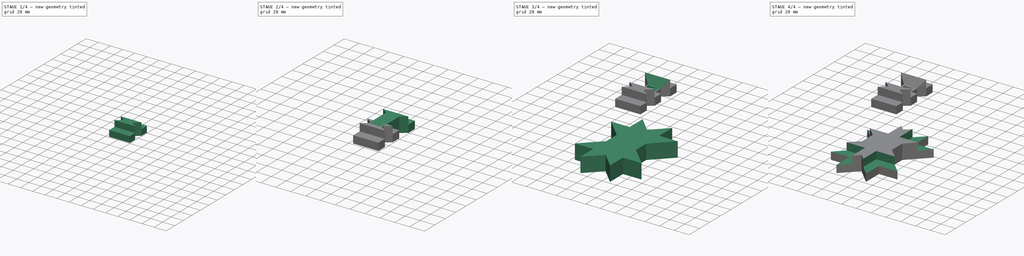
[diagram: build sequence overview — one tinted view per stage of 4, left to right]
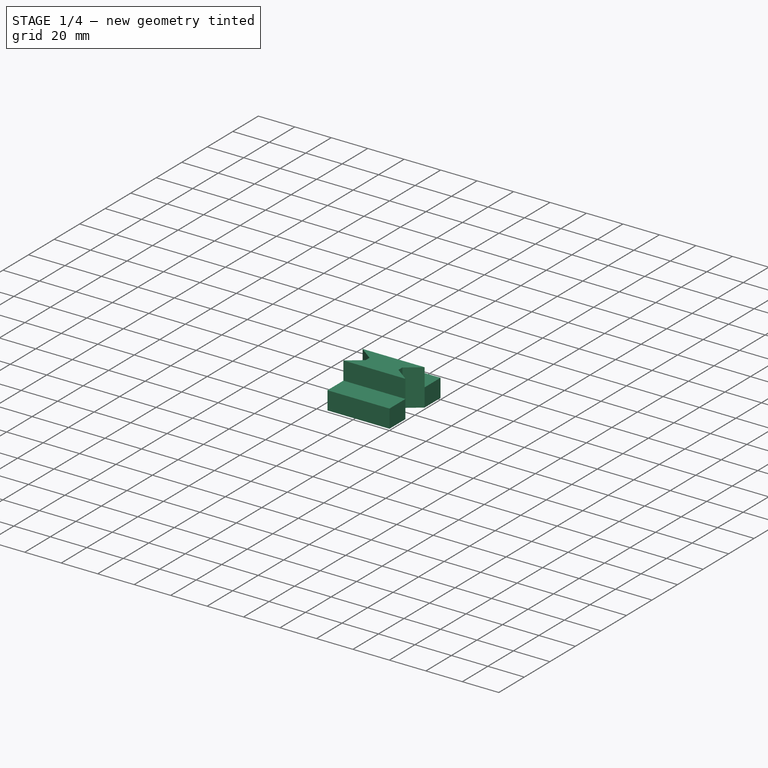
[diagram: stage 1 of 4 — iso view after this stage's code; geometry added in this stage tinted green]
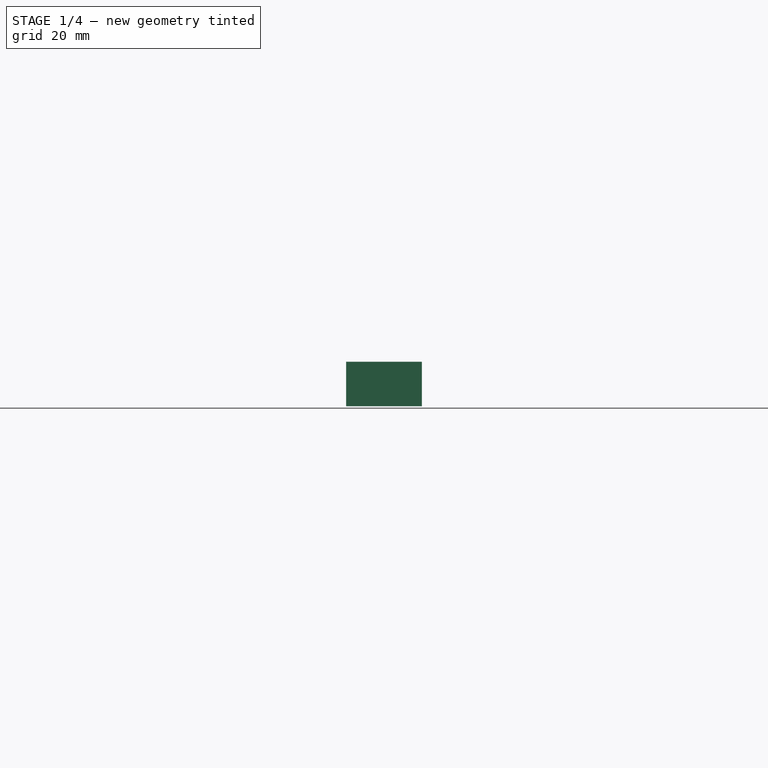
[diagram: stage 1 of 4 — front view after this stage's code; geometry added in this stage tinted green]
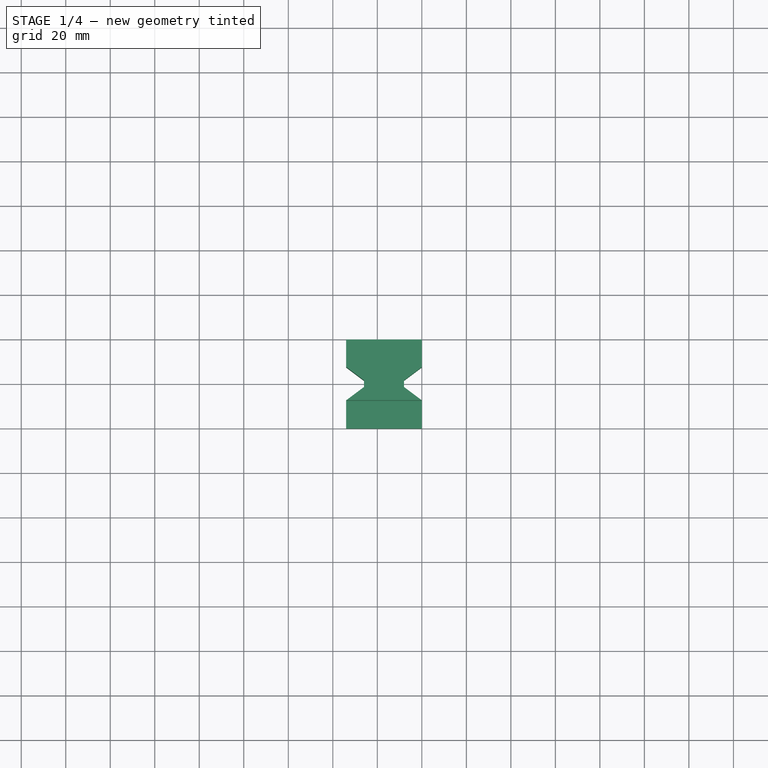
[diagram: stage 1 of 4 — top view after this stage's code; geometry added in this stage tinted green]
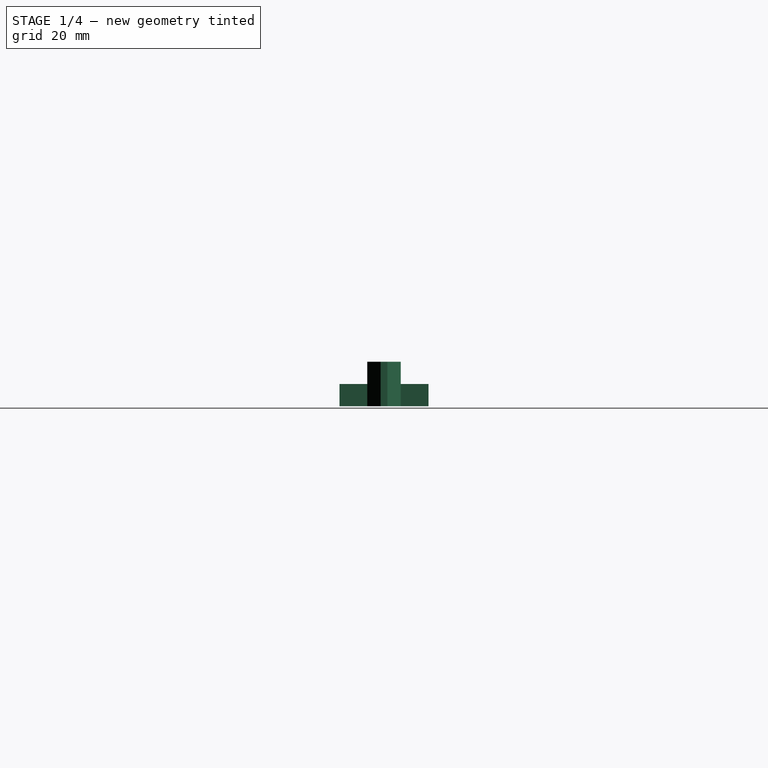
[diagram: stage 1 of 4 — right view after this stage's code; geometry added in this stage tinted green]
FCSTD DOCUMENT  (FreeCAD 0.20R29410 (Git))
Label: OtherBodyParts_Featherweight-fixed
License: All rights reserved
LicenseURL: http://en.wikipedia.org/wiki/All_rights_reserved
objects: Sketcher::SketchObject×10, PartDesign::Pocket×7, PartDesign::Pad×3, PartDesign::Body×3
note: 33 computed .brp shape members not serialized (recipe doc carries the construction recipe); baked Part::Feature solids carry a one-line shape summary decoded from their .brp

FEATURE [Sketcher::SketchObject] Sketch001
  FullyConstrained = true
  MapMode = 5
  Support = -> [XY_Plane001]
  sketch-geometry (12):
    g0: LineSegment StartX=-34 StartY=40 StartZ=0 EndX=1.39942e-05 EndY=40 EndZ=0
    g1: LineSegment StartX=1.39942e-05 StartY=40 StartZ=0 EndX=1.39942e-05 EndY=27.5 EndZ=0
    g2: LineSegment StartX=0 StartY=0 StartZ=0 EndX=-34 EndY=0 EndZ=0
    g3: LineSegment StartX=-34 StartY=0 StartZ=0 EndX=-34 EndY=12.5 EndZ=0
    g4: LineSegment StartX=-34 StartY=27.5 StartZ=0 EndX=-26 EndY=21.5 EndZ=0
    g5: LineSegment StartX=-26 StartY=21.5 StartZ=0 EndX=-26 EndY=18.5 EndZ=0
    g6: LineSegment StartX=-26 StartY=18.5 StartZ=0 EndX=-34 EndY=12.5 EndZ=0
    g7: LineSegment StartX=4.18297e-05 StartY=12.5 StartZ=0 EndX=-7.99998 EndY=18.5 EndZ=0
    g8: LineSegment StartX=-7.99998 StartY=18.5 StartZ=0 EndX=-7.99998 EndY=21.5 EndZ=0
    g9: LineSegment StartX=-7.99998 StartY=21.5 StartZ=0 EndX=1.39942e-05 EndY=27.5 EndZ=0
    g10: LineSegment StartX=-34 StartY=27.5 StartZ=0 EndX=-34 EndY=40 EndZ=0
    g11: LineSegment StartX=4.18297e-05 StartY=12.5 StartZ=0 EndX=0 EndY=0 EndZ=0
  constraints (35):
    c: Coincident(g0,g1)
    c: Coincident(g11,g2)
    c: Coincident(g10,g0)
    c: Horizontal(g0)
    c: Horizontal(g2)
    c: Vertical(g1)
    c: Vertical(g3)
    c: Coincident(g4,g5)
    c: Vertical(g5)
    c: Coincident(g5,g6)
    c: Coincident(g7,g8)
    c: Vertical(g8)
    c: Coincident(g8,g9)
    c: Coincident(g3,g6)
    c: Coincident(g10,g4)
    c: Coincident(g1,g9)
    c: Coincident(g11,g7)
    c: Equal(g11,g3)
    c: Equal(g3,g10)
    c: Equal(g10,g1)
    c: Equal(g8,g5)
    c: Equal(g6,g7)
    c: Equal(g7,g9)
    c: Equal(g9,g4)
    c: Equal(g0,g2)
    c: DistanceX(g4,g8) = 18
    c: DistanceY(g4,g8) = 0
    c: DistanceY(g1,g4) = 0
    c: Coincident(g3,g2)
    c: DistanceX(g0,g0) = 34
    c: Distance(g7,g7) = 10
    c: DistanceY(g7,g3) = 0
    c: Coincident(g2,g-1)
    c: DistanceY(g10,g10) = 12.5
    c: DistanceY(g3,g4) = 15
FEATURE [PartDesign::Pad] Pad001
  Direction = (0,0,1)
  Length = 20
  Length2 = 10
  Profile = -> Sketch001
  ReferenceAxis = -> Sketch001 [N_Axis]
  Type = 0
FEATURE [PartDesign::Body] Body  label="I"
  Group = -> [Sketch,Pad,Sketch003,Pocket,Sketch004,Pocket001,Sketch008,Pocket005,Sketch009,Pocket006]
  Origin = -> Origin
  Tip = -> Pocket006
FEATURE [Sketcher::SketchObject] Sketch010
  ExternalGeometry = -> [Pad001]
  FullyConstrained = true
  MapMode = 5
  Placement = pos=(0,0,20) rot=(0,0,1;0rad)
  Support = -> [Pad001]
  sketch-geometry (8):
    g0: LineSegment StartX=-34 StartY=40 StartZ=0 EndX=1.39942e-05 EndY=40 EndZ=0
    g1: LineSegment StartX=1.39942e-05 StartY=40 StartZ=0 EndX=1.39942e-05 EndY=27.5 EndZ=0
    g2: LineSegment StartX=1.39942e-05 StartY=27.5 StartZ=0 EndX=-34 EndY=27.5 EndZ=0
    g3: LineSegment StartX=-34 StartY=27.5 StartZ=0 EndX=-34 EndY=40 EndZ=0
    g4: LineSegment StartX=-34 StartY=0 StartZ=0 EndX=4.18297e-05 EndY=0 EndZ=0
    g5: LineSegment StartX=4.18297e-05 StartY=0 StartZ=0 EndX=4.18297e-05 EndY=12.5 EndZ=0
    g6: LineSegment StartX=4.18297e-05 StartY=12.5 StartZ=0 EndX=-34 EndY=12.5 EndZ=0
    g7: LineSegment StartX=-34 StartY=12.5 StartZ=0 EndX=-34 EndY=0 EndZ=0
  constraints (22):
    c: Coincident(g0,g1)
    c: Coincident(g1,g2)
    c: Coincident(g2,g3)
    c: Coincident(g3,g0)
    c: Horizontal(g0)
    c: Horizontal(g2)
    c: Vertical(g1)
    c: Vertical(g3)
    c: Coincident(g0,g-5)
    c: PointOnObject(g1,g-6)
    c: Coincident(g4,g5)
    c: Coincident(g5,g6)
    c: Coincident(g6,g7)
    c: Coincident(g7,g4)
    c: Horizontal(g4)
    c: Horizontal(g6)
    c: Vertical(g5)
    c: Vertical(g7)
    c: Coincident(g4,g-3)
    c: PointOnObject(g5,g-4)
    c: DistanceY(g7,g7) = 12.5
    c: DistanceY(g3,g3) = 12.5
FEATURE [PartDesign::Pocket] Pocket007
  BaseFeature = -> Pad001
  Direction = (0,0,-1)
  Length = 10
  Length2 = 5
  Profile = -> Sketch010
  ReferenceAxis = -> Sketch010 [N_Axis]
  Type = 0
FEATURE [PartDesign::Body] Body001  label="I2 (4cm)"
  Group = -> [Sketch001,Pad001,Sketch010,Pocket007]
  Origin = -> Origin001
  Placement = pos=(60.5835,0,0) rot=(0,0,1;0rad)
  Tip = -> Pocket007
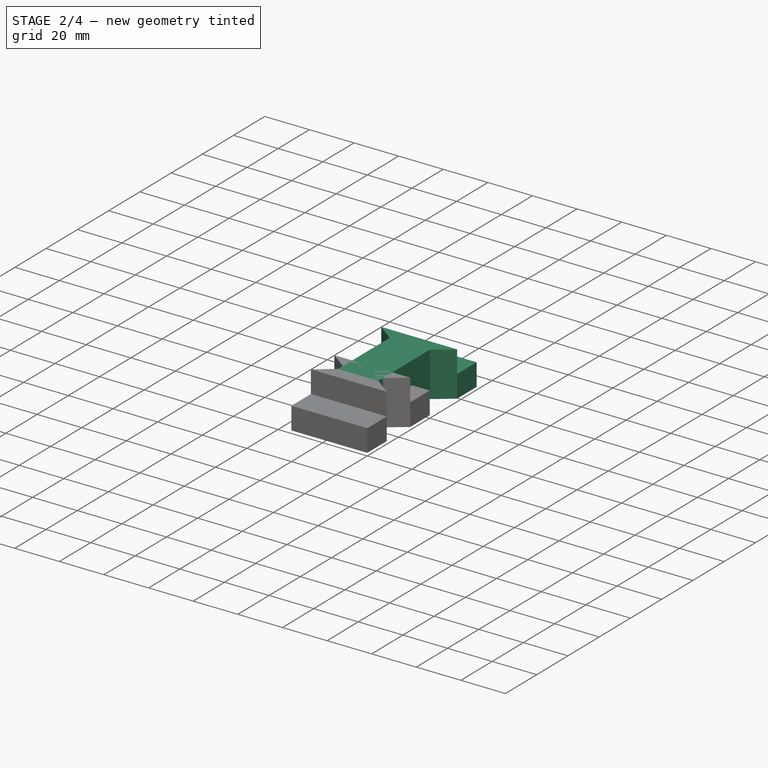
[diagram: stage 2 of 4 — iso view after this stage's code; geometry added in this stage tinted green]
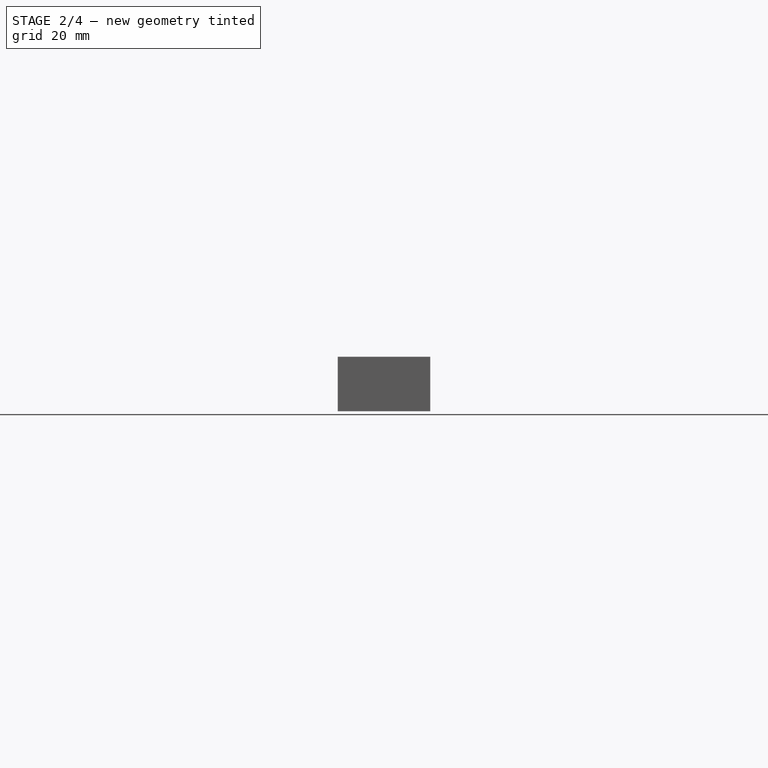
[diagram: stage 2 of 4 — front view after this stage's code; geometry added in this stage tinted green]
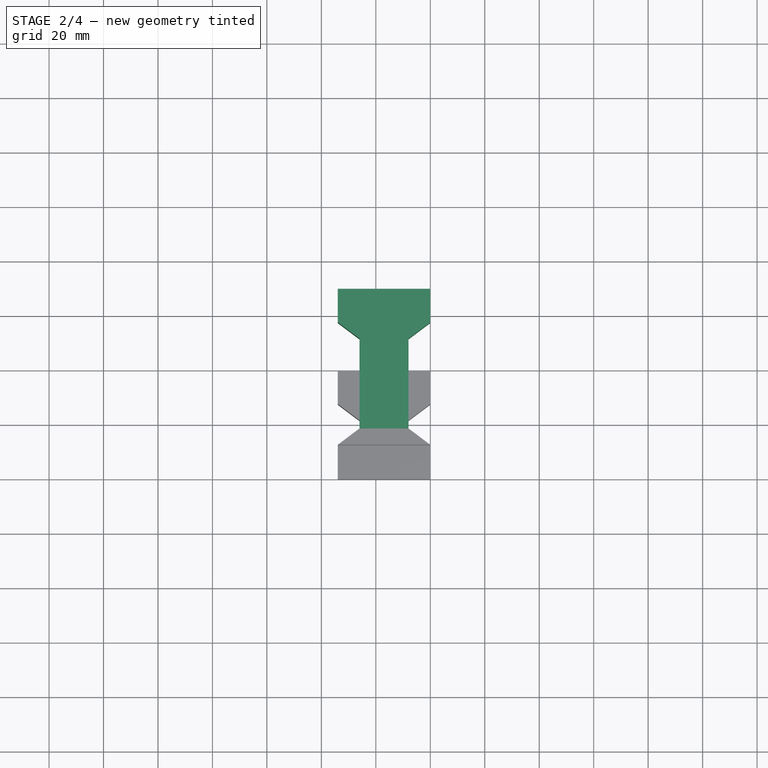
[diagram: stage 2 of 4 — top view after this stage's code; geometry added in this stage tinted green]
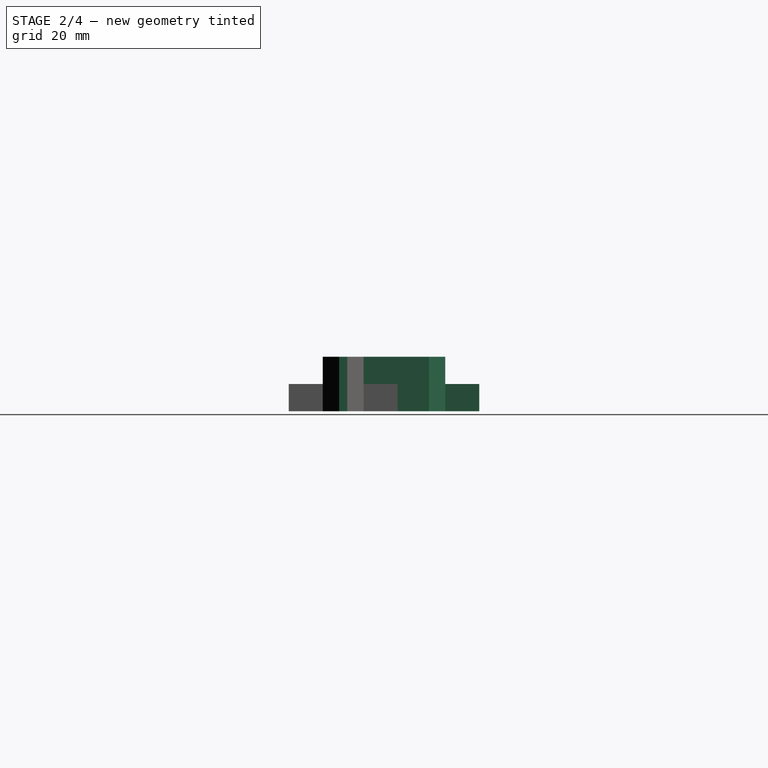
[diagram: stage 2 of 4 — right view after this stage's code; geometry added in this stage tinted green]
FEATURE [Sketcher::SketchObject] Sketch
  FullyConstrained = true
  MapMode = 5
  Support = -> [XY_Plane]
  sketch-geometry (12):
    g0: LineSegment StartX=-34 StartY=70 StartZ=0 EndX=1.39943e-05 EndY=70 EndZ=0
    g1: LineSegment StartX=1.39943e-05 StartY=70 StartZ=0 EndX=1.39943e-05 EndY=57.5 EndZ=0
    g2: LineSegment StartX=0 StartY=0 StartZ=0 EndX=-34 EndY=0 EndZ=0
    g3: LineSegment StartX=-34 StartY=0 StartZ=0 EndX=-34 EndY=12.5 EndZ=0
    g4: LineSegment StartX=-34 StartY=57.5 StartZ=0 EndX=-26 EndY=51.5 EndZ=0
    g5: LineSegment StartX=-26 StartY=51.5 StartZ=0 EndX=-26 EndY=18.5 EndZ=0
    g6: LineSegment StartX=-26 StartY=18.5 StartZ=0 EndX=-34 EndY=12.5 EndZ=0
    g7: LineSegment StartX=4.18296e-05 StartY=12.5 StartZ=0 EndX=-7.99998 EndY=18.5 EndZ=0
    g8: LineSegment StartX=-7.99998 StartY=18.5 StartZ=0 EndX=-7.99998 EndY=51.5 EndZ=0
    g9: LineSegment StartX=-7.99998 StartY=51.5 StartZ=0 EndX=1.39943e-05 EndY=57.5 EndZ=0
    g10: LineSegment StartX=-34 StartY=57.5 StartZ=0 EndX=-34 EndY=70 EndZ=0
    g11: LineSegment StartX=4.18296e-05 StartY=12.5 StartZ=0 EndX=0 EndY=0 EndZ=0
  constraints (35):
    c: Coincident(g0,g1)
    c: Coincident(g11,g2)
    c: Coincident(g10,g0)
    c: Horizontal(g0)
    c: Horizontal(g2)
    c: Vertical(g1)
    c: Vertical(g3)
    c: Coincident(g4,g5)
    c: Vertical(g5)
    c: Coincident(g5,g6)
    c: Coincident(g7,g8)
    c: Vertical(g8)
    c: Coincident(g8,g9)
    c: Coincident(g3,g6)
    c: Coincident(g10,g4)
    c: Coincident(g1,g9)
    c: Coincident(g11,g7)
    c: Equal(g11,g3)
    c: Equal(g3,g10)
    c: Equal(g10,g1)
    c: Equal(g8,g5)
    c: Equal(g6,g7)
    c: Equal(g7,g9)
    c: Equal(g9,g4)
    c: Equal(g0,g2)
    c: DistanceX(g4,g8) = 18
    c: DistanceY(g4,g8) = 0
    c: DistanceY(g1,g4) = 0
    c: Coincident(g3,g2)
    c: DistanceX(g0,g0) = 34
    c: Distance(g7,g7) = 10
    c: DistanceY(g7,g3) = 0
    c: Coincident(g2,g-1)
    c: DistanceY(g10,g10) = 12.5
    c: DistanceY(g3,g4) = 45
FEATURE [PartDesign::Pad] Pad
  Direction = (0,0,1)
  Length = 20
  Length2 = 10
  Profile = -> Sketch
  ReferenceAxis = -> Sketch [N_Axis]
  Type = 0
FEATURE [Sketcher::SketchObject] Sketch003
  ExternalGeometry = -> [Pad]
  FullyConstrained = true
  MapMode = 5
  Placement = pos=(0,0,20) rot=(0,0,1;0rad)
  Support = -> [Pad]
  sketch-geometry (4):
    g0: LineSegment StartX=-34 StartY=12.5 StartZ=0 EndX=4.18296e-05 EndY=12.5 EndZ=0
    g1: LineSegment StartX=4.18296e-05 StartY=12.5 StartZ=0 EndX=0 EndY=0 EndZ=0
    g2: LineSegment StartX=0 StartY=0 StartZ=0 EndX=-34 EndY=0 EndZ=0
    g3: LineSegment StartX=-34 StartY=0 StartZ=0 EndX=-34 EndY=12.5 EndZ=0
  constraints (8):
    c: Coincident(g-4,g0)
    c: Coincident(g0,g-5)
    c: Coincident(g0,g1)
    c: Coincident(g1,g-5)
    c: Coincident(g1,g2)
    c: Coincident(g2,g-4)
    c: Coincident(g2,g3)
    c: Coincident(g3,g0)
FEATURE [PartDesign::Pocket] Pocket
  BaseFeature = -> Pad
  Direction = (0,0,-1)
  Length = 10
  Length2 = 5
  Profile = -> Sketch003
  ReferenceAxis = -> Sketch003 [N_Axis]
  Type = 0
FEATURE [Sketcher::SketchObject] Sketch004
  ExternalGeometry = -> [Pocket]
  FullyConstrained = true
  MapMode = 5
  Placement = pos=(0,0,20) rot=(0,0,1;0rad)
  Support = -> [Pocket]
  sketch-geometry (4):
    g0: LineSegment StartX=-34 StartY=57.5 StartZ=0 EndX=1.39943e-05 EndY=57.5 EndZ=0
    g1: LineSegment StartX=1.39943e-05 StartY=57.5 StartZ=0 EndX=1.39943e-05 EndY=70 EndZ=0
    g2: LineSegment StartX=1.39943e-05 StartY=70 StartZ=0 EndX=-34 EndY=70 EndZ=0
    g3: LineSegment StartX=-34 StartY=70 StartZ=0 EndX=-34 EndY=57.5 EndZ=0
  constraints (8):
    c: Coincident(g-4,g0)
    c: Coincident(g0,g-5)
    c: Coincident(g0,g1)
    c: Coincident(g1,g-5)
    c: Coincident(g1,g2)
    c: Coincident(g2,g-4)
    c: Coincident(g2,g3)
    c: Coincident(g3,g0)
FEATURE [PartDesign::Pocket] Pocket001
  BaseFeature = -> Pocket
  Direction = (0,0,-1)
  Length = 10
  Length2 = 5
  Profile = -> Sketch004
  ReferenceAxis = -> Sketch004 [N_Axis]
  Type = 0
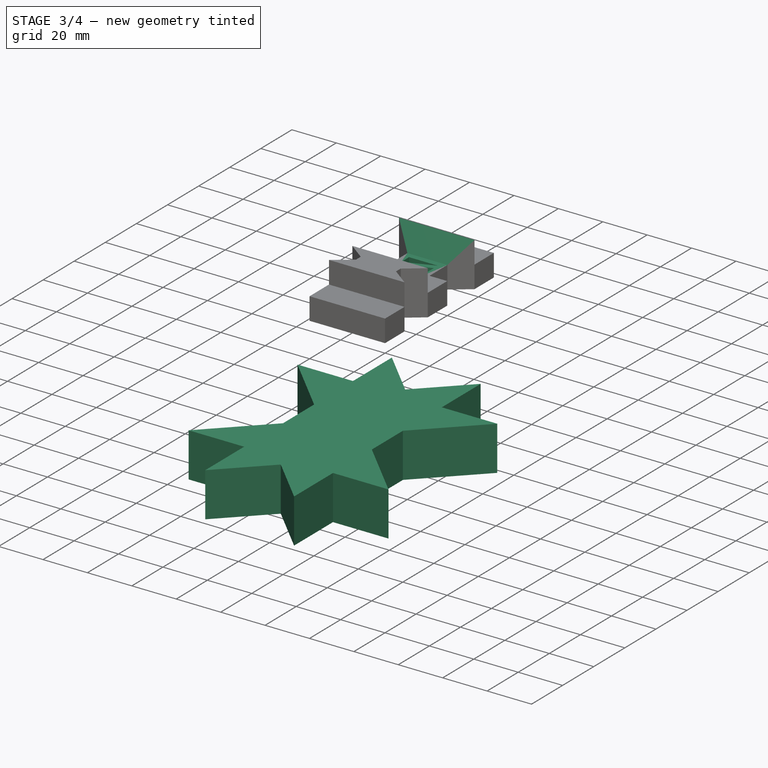
[diagram: stage 3 of 4 — iso view after this stage's code; geometry added in this stage tinted green]
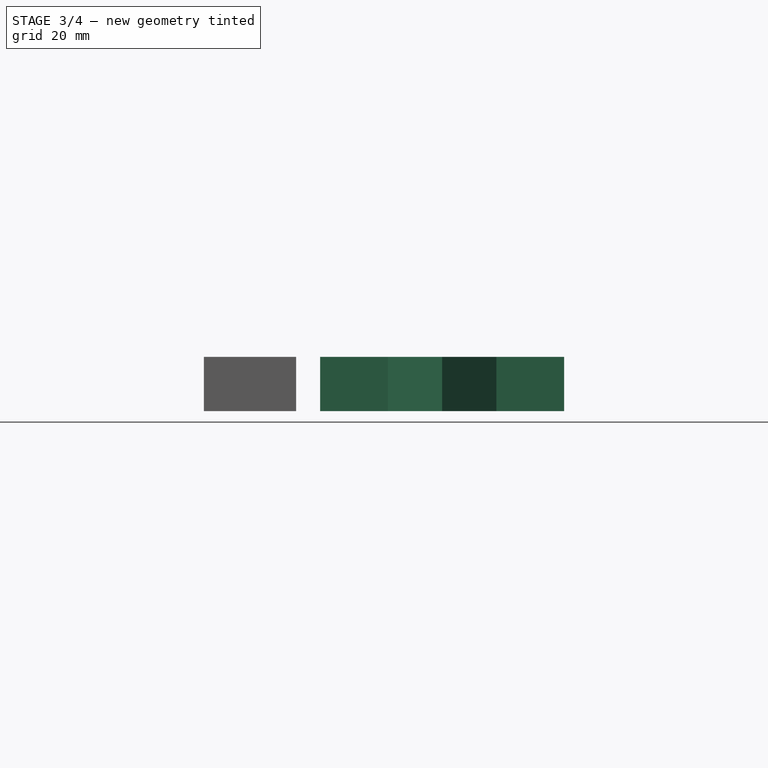
[diagram: stage 3 of 4 — front view after this stage's code; geometry added in this stage tinted green]
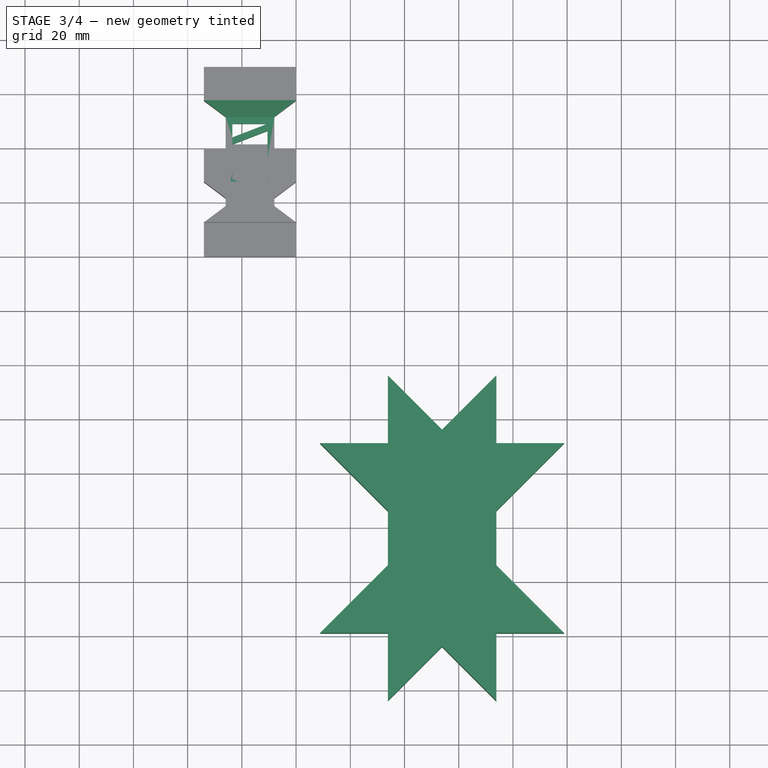
[diagram: stage 3 of 4 — top view after this stage's code; geometry added in this stage tinted green]
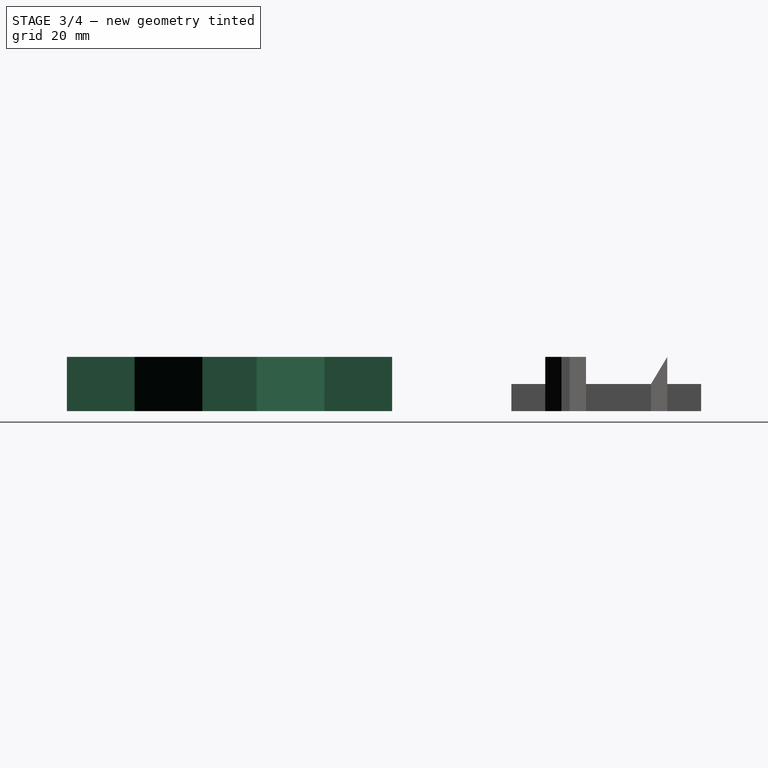
[diagram: stage 3 of 4 — right view after this stage's code; geometry added in this stage tinted green]
FEATURE [Sketcher::SketchObject] Sketch002
  FullyConstrained = true
  MapMode = 5
  Support = -> [XY_Plane002]
  sketch-geometry (22):
    g0: LineSegment StartX=33.87 StartY=-44 StartZ=0 EndX=53.87 EndY=-64 EndZ=0
    g1: LineSegment StartX=8.87 StartY=-69 StartZ=0 EndX=43.87 EndY=-104 EndZ=0
    g2: LineSegment StartX=8.87 StartY=-139 StartZ=0 EndX=43.87 EndY=-104 EndZ=0
    g3: LineSegment StartX=98.87 StartY=-69 StartZ=0 EndX=63.87 EndY=-104 EndZ=0
    g4: LineSegment StartX=8.87 StartY=-139 StartZ=0 EndX=33.87 EndY=-139 EndZ=0
    g5: LineSegment StartX=33.87 StartY=-139 StartZ=0 EndX=33.87 EndY=-164 EndZ=0
    g6: LineSegment StartX=73.87 StartY=-164 StartZ=0 EndX=73.87 EndY=-139 EndZ=0
    g7: LineSegment StartX=73.87 StartY=-139 StartZ=0 EndX=98.87 EndY=-139 EndZ=0
    g8: LineSegment StartX=73.87 StartY=-44 StartZ=0 EndX=73.87 EndY=-69 EndZ=0
    g9: LineSegment StartX=73.87 StartY=-69 StartZ=0 EndX=98.87 EndY=-69 EndZ=0
    g10: LineSegment StartX=8.87 StartY=-69 StartZ=0 EndX=33.87 EndY=-69 EndZ=0
    g11: LineSegment StartX=33.87 StartY=-69 StartZ=0 EndX=33.87 EndY=-44 EndZ=0
    g12: LineSegment StartX=53.87 StartY=-144 StartZ=0 EndX=73.87 EndY=-164 EndZ=0
    g13: LineSegment StartX=53.87 StartY=-144 StartZ=0 EndX=33.87 EndY=-164 EndZ=0
    g14: LineSegment StartX=63.87 StartY=-104 StartZ=0 EndX=98.87 EndY=-139 EndZ=0
    g15: LineSegment StartX=53.87 StartY=-64 StartZ=0 EndX=73.87 EndY=-44 EndZ=0
    g16: LineSegment StartX=8.87 StartY=-69 StartZ=0 EndX=33.87 EndY=-94 EndZ=0
    g17: LineSegment StartX=33.87 StartY=-94 StartZ=0 EndX=33.87 EndY=-114 EndZ=0
    g18: LineSegment StartX=33.87 StartY=-114 StartZ=0 EndX=8.87 EndY=-139 EndZ=0
    g19: LineSegment StartX=98.87 StartY=-139 StartZ=0 EndX=73.87 EndY=-114 EndZ=0
    g20: LineSegment StartX=73.87 StartY=-114 StartZ=0 EndX=73.87 EndY=-94 EndZ=0
    g21: LineSegment StartX=73.87 StartY=-94 StartZ=0 EndX=98.87 EndY=-69 EndZ=0
  constraints (64):
    c: Coincident(g2,g4)
    c: Horizontal(g4)
    c: Coincident(g4,g5)
    c: Coincident(g5,g13)
    c: Coincident(g12,g6)
    c: Vertical(g6)
    c: Coincident(g6,g7)
    c: Coincident(g7,g14)
    c: Coincident(g15,g8)
    c: Vertical(g8)
    c: Coincident(g8,g9)
    c: Coincident(g9,g3)
    c: Coincident(g1,g10)
    c: Coincident(g10,g11)
    c: Coincident(g11,g0)
    c: Coincident(g13,g12)
    c: Coincident(g14,g3)
    c: Coincident(g2,g1)
    c: Coincident(g15,g0)
    c: DistanceY(g6,g8) = 120
    c: DistanceX(g2,g7) = 90
    c: Equal(g11,g10)
    c: Equal(g10,g8)
    c: Equal(g8,g9)
    c: Equal(g9,g7)
    c: Equal(g7,g6)
    c: Equal(g6,g5)
    c: Equal(g5,g4)
    c: DistanceY(g5,g5) = 25
    c: DistanceY(g3,g1) = 0
    c: DistanceX(g12,g0) = 0
    c: Perpendicular(g11,g10)
    c: Perpendicular(g8,g9)
    c: Perpendicular(g7,g6)
    c: Perpendicular(g5,g4)
    c: DistanceY(g10,g8) = 0
    c: Equal(g0,g15)
    c: Equal(g15,g12)
    c: Equal(g12,g13)
    c: Equal(g2,g14)
    c: Equal(g14,g3)
    c: Equal(g3,g1)
    c: Parallel(g14,g12)
    c: Parallel(g2,g13)
    c: Parallel(g1,g0)
    c: Angle(g14,g3) = 1.5708
    c: DistanceX(g-1,g0) = 33.87
    c: DistanceY(g1,g-1) = 69
    c: Coincident(g10,g16)
    c: PointOnObject(g16,g1)
    c: Coincident(g16,g17)
    c: PointOnObject(g17,g2)
    c: Vertical(g17)
    c: Coincident(g17,g18)
    c: Coincident(g18,g4)
    c: Coincident(g7,g19)
    c: PointOnObject(g19,g14)
    c: Coincident(g19,g20)
    c: PointOnObject(g20,g3)
    c: Vertical(g20)
    c: Coincident(g20,g21)
    c: Coincident(g21,g9)
    c: DistanceX(g16,g20) = 40
    c: Equal(g20,g17)
FEATURE [PartDesign::Pad] Pad002
  Direction = (0,0,1)
  Length = 20
  Length2 = 10
  Profile = -> Sketch002
  ReferenceAxis = -> Sketch002 [N_Axis]
  Type = 0
FEATURE [PartDesign::Body] Body002  label="Star"
  Group = -> [Sketch002,Pad002,Sketch006,Pocket003,Sketch007,Pocket004]
  Origin = -> Origin002
  Tip = -> Pocket004
FEATURE [Sketcher::SketchObject] Sketch008
  AttachmentOffset = pos=(0,0,10) rot=(0,0,1;0rad)
  FullyConstrained = true
  MapMode = 5
  Placement = pos=(2.00002,0,0) rot=(0.57735,0.57735,0.57735;2.0944rad)
  Support = -> [Pocket001]
  sketch-geometry (4):
    g0: LineSegment StartX=12.5 StartY=20 StartZ=0 EndX=18.5 EndY=10 EndZ=0
    g1: LineSegment StartX=18.5 StartY=10 StartZ=0 EndX=51.5 EndY=10 EndZ=0
    g2: LineSegment StartX=51.5 StartY=10 StartZ=0 EndX=57.5 EndY=20 EndZ=0
    g3: LineSegment StartX=57.5 StartY=20 StartZ=0 EndX=12.5 EndY=20 EndZ=0
  constraints (12):
    c: Coincident(g0,g1)
    c: Horizontal(g1)
    c: Coincident(g1,g2)
    c: Coincident(g2,g3)
    c: Coincident(g3,g0)
    c: Horizontal(g3)
    c: DistanceX(g-1,g0) = 12.5
    c: DistanceX(g-1,g0) = 18.5
    c: DistanceY(g-1,g0) = 20
    c: DistanceY(g-1,g0) = 10
    c: DistanceX(g1,g1) = 33
    c: DistanceX(g3,g3) = 45
FEATURE [PartDesign::Pocket] Pocket005
  BaseFeature = -> Pocket001
  Direction = (-1,0,0)
  Length = 40
  Length2 = 5
  Profile = -> Sketch008
  ReferenceAxis = -> Sketch008 [N_Axis]
  Type = 0
FEATURE [Sketcher::SketchObject] Sketch009
  FullyConstrained = false
  MapMode = 5
  Placement = pos=(0,0,10) rot=(0,0,1;0rad)
  Support = -> [Pocket005]
  sketch-geometry (18):
    g0: LineSegment StartX=-23.5239 StartY=26 StartZ=0 EndX=-23.5239 EndY=21 EndZ=0
    g1: LineSegment StartX=-23.5239 StartY=21 StartZ=0 EndX=-10.5239 EndY=21 EndZ=0
    g2: LineSegment StartX=-10.5239 StartY=21 StartZ=0 EndX=-23.5239 EndY=26 EndZ=0
    g3: LineSegment StartX=-23.5239 StartY=28.6 StartZ=0 EndX=-10.5239 EndY=23.6 EndZ=0
    g4: LineSegment StartX=-10.5239 StartY=23.6 StartZ=0 EndX=-10.5239 EndY=28.6 EndZ=0
    g5: LineSegment StartX=-10.5239 StartY=28.6 StartZ=0 EndX=-23.5239 EndY=28.6 EndZ=0
    g6: LineSegment StartX=-23.5239 StartY=49 StartZ=0 EndX=-10.5239 EndY=49 EndZ=0
    g7: LineSegment StartX=-10.5239 StartY=49 StartZ=0 EndX=-23.5239 EndY=44 EndZ=0
    g8: LineSegment StartX=-23.5239 StartY=44 StartZ=0 EndX=-23.5239 EndY=49 EndZ=0
    g9: LineSegment StartX=-23.5239 StartY=41.4 StartZ=0 EndX=-10.5239 EndY=46.4 EndZ=0
    g10: LineSegment StartX=-10.5239 StartY=46.4 StartZ=0 EndX=-10.5239 EndY=41.4 EndZ=0
    g11: LineSegment StartX=-10.5239 StartY=41.4 StartZ=0 EndX=-23.5239 EndY=41.4 EndZ=0
    g12: LineSegment StartX=-23.5239 StartY=38.8 StartZ=0 EndX=-23.5239 EndY=33.8 EndZ=0
    g13: LineSegment StartX=-23.5239 StartY=33.8 StartZ=0 EndX=-10.5239 EndY=38.8 EndZ=0
    g14: LineSegment StartX=-10.5239 StartY=38.8 StartZ=0 EndX=-23.5239 EndY=38.8 EndZ=0
    g15: LineSegment StartX=-23.5239 StartY=31.2 StartZ=0 EndX=-10.5239 EndY=36.2 EndZ=0
    g16: LineSegment StartX=-10.5239 StartY=36.2 StartZ=0 EndX=-10.5239 EndY=31.2 EndZ=0
    g17: LineSegment StartX=-10.5239 StartY=31.2 StartZ=0 EndX=-23.5239 EndY=31.2 EndZ=0
  constraints (53):
    c: Vertical(g0)
    c: Coincident(g0,g1)
    c: Horizontal(g1)
    c: Coincident(g1,g2)
    c: Coincident(g2,g0)
    c: Coincident(g3,g4)
    c: Vertical(g4)
    c: Coincident(g4,g5)
    c: Coincident(g5,g3)
    c: Horizontal(g5)
    c: Horizontal(g6)
    c: Coincident(g6,g7)
    c: Coincident(g7,g8)
    c: Coincident(g8,g6)
    c: Coincident(g9,g10)
    c: Coincident(g10,g11)
    c: Coincident(g11,g9)
    c: Vertical(g12)
    c: Coincident(g12,g13)
    c: Coincident(g13,g14)
    c: Coincident(g14,g12)
    c: Horizontal(g14)
    c: Coincident(g15,g16)
    c: Vertical(g16)
    c: Coincident(g16,g17)
    c: Coincident(g17,g15)
    c: Horizontal(g17)
    c: DistanceX(g1,g1) = 13
    c: DistanceY(g0,g0) = 5
    c: DistanceY(g4,g4) = 5
    c: DistanceX(g5,g5) = 13
    c: DistanceY(g0,g3) = 2.6
    c: DistanceY(g-1,g0) = 26
    c: DistanceX(g17,g17) = 13
    c: DistanceY(g16,g16) = 5
    c: DistanceY(g12,g12) = 5
    c: DistanceX(g14,g14) = 13
    c: DistanceX(g6,g6) = 13
    c: DistanceX(g11,g11) = 13
    c: DistanceY(g8,g8) = 5
    c: DistanceY(g10,g10) = 5
    c: Perpendicular(g8,g6)
    c: Perpendicular(g11,g10)
    c: DistanceY(g3,g15) = 2.6
    c: DistanceY(g15,g12) = 2.6
    c: DistanceY(g12,g9) = 2.6
    c: Horizontal(g11)
    c: DistanceY(g9,g7) = 2.6
    c: DistanceX(g7,g9) = 0
    c: DistanceX(g12,g9) = 0
    c: DistanceX(g15,g12) = 0
    c: DistanceX(g15,g3) = 0
    c: DistanceX(g3,g0) = 0
FEATURE [PartDesign::Pocket] Pocket006
  BaseFeature = -> Pocket005
  Direction = (0,0,-1)
  Length = 5
  Length2 = 5
  Profile = -> Sketch009
  ReferenceAxis = -> Sketch009 [N_Axis]
  Type = 1
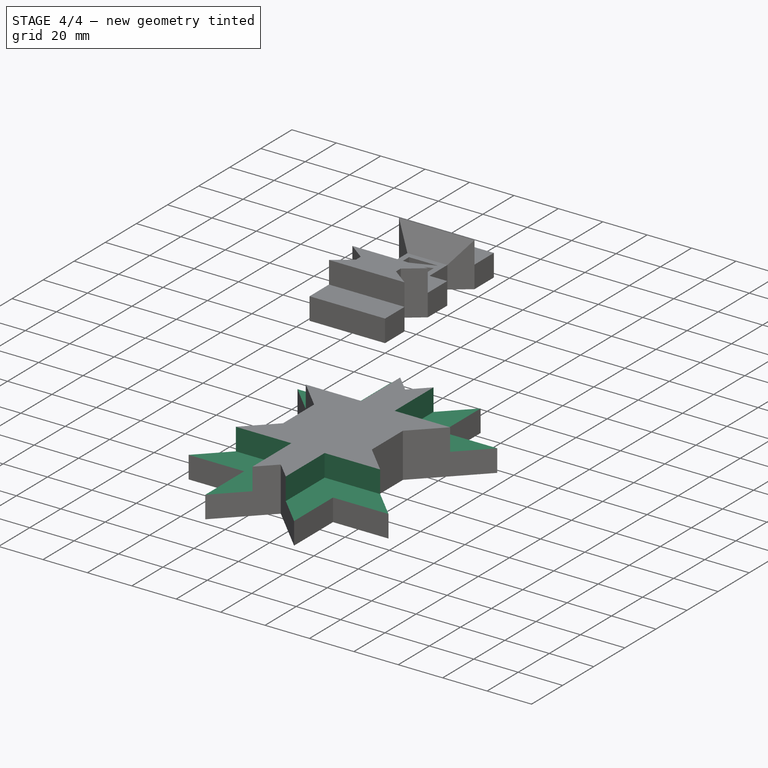
[diagram: stage 4 of 4 — iso view after this stage's code; geometry added in this stage tinted green]
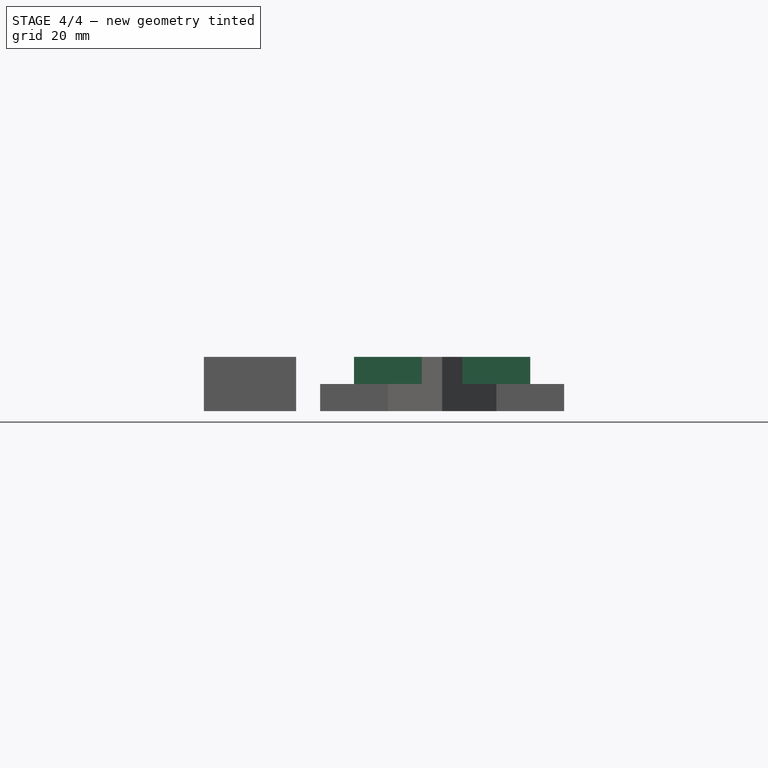
[diagram: stage 4 of 4 — front view after this stage's code; geometry added in this stage tinted green]
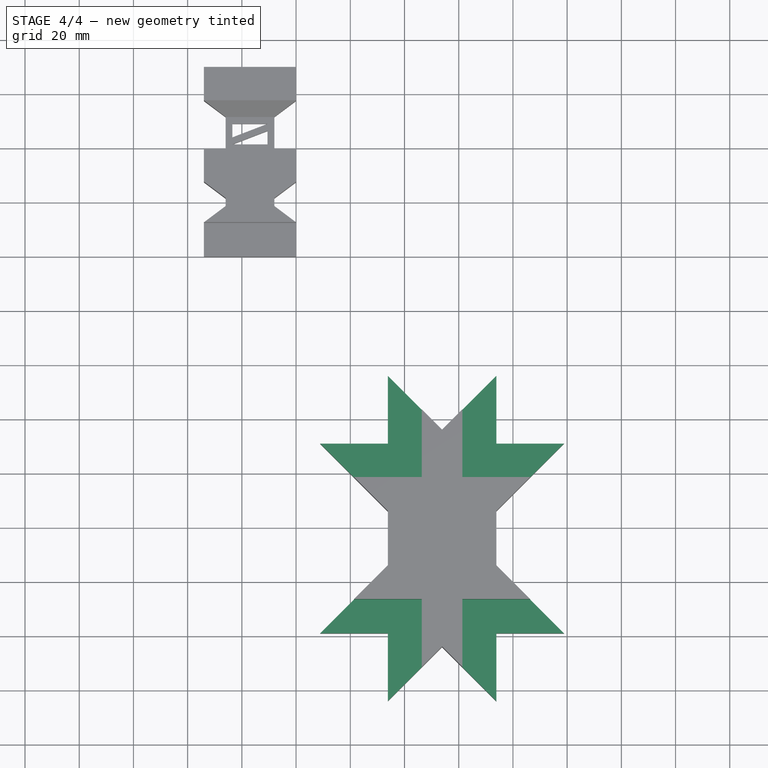
[diagram: stage 4 of 4 — top view after this stage's code; geometry added in this stage tinted green]
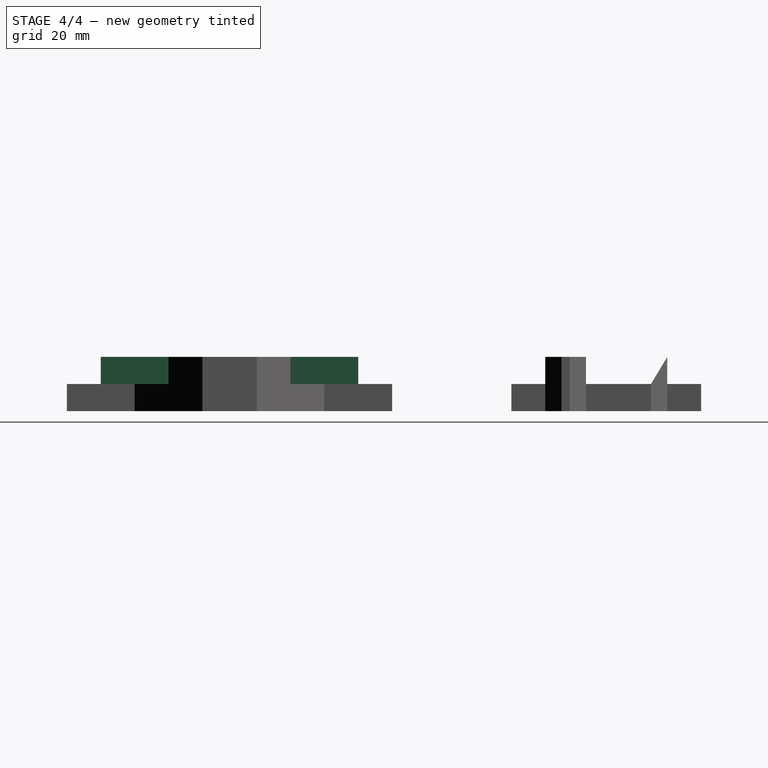
[diagram: stage 4 of 4 — right view after this stage's code; geometry added in this stage tinted green]
FEATURE [Sketcher::SketchObject] Sketch006
  ExternalGeometry = -> [Pad002]
  FullyConstrained = true
  MapMode = 5
  Placement = pos=(0,0,20) rot=(0,0,1;0rad)
  Support = -> [Pad002]
  sketch-geometry (18):
    g0: LineSegment StartX=21.37 StartY=-126.5 StartZ=0 EndX=46.37 EndY=-126.5 EndZ=0
    g1: LineSegment StartX=46.37 StartY=-126.5 StartZ=0 EndX=46.37 EndY=-151.5 EndZ=0
    g2: LineSegment StartX=46.37 StartY=-151.5 StartZ=0 EndX=33.87 EndY=-164 EndZ=0
    g3: LineSegment StartX=33.87 StartY=-164 StartZ=0 EndX=33.87 EndY=-139 EndZ=0
    g4: LineSegment StartX=33.87 StartY=-139 StartZ=0 EndX=8.87 EndY=-139 EndZ=0
    g5: LineSegment StartX=8.87 StartY=-139 StartZ=0 EndX=21.37 EndY=-126.5 EndZ=0
    g6: LineSegment StartX=21.37 StartY=-81.5 StartZ=0 EndX=46.37 EndY=-81.5 EndZ=0
    g7: LineSegment StartX=46.37 StartY=-81.5 StartZ=0 EndX=46.37 EndY=-56.5 EndZ=0
    g8: LineSegment StartX=46.37 StartY=-56.5 StartZ=0 EndX=33.87 EndY=-44 EndZ=0
    g9: LineSegment StartX=33.87 StartY=-69 StartZ=0 EndX=8.87 EndY=-69 EndZ=0
    g10: LineSegment StartX=8.87 StartY=-69 StartZ=0 EndX=21.37 EndY=-81.5 EndZ=0
    g11: LineSegment StartX=73.87 StartY=-44 StartZ=0 EndX=61.37 EndY=-56.5 EndZ=0
    g12: LineSegment StartX=61.37 StartY=-56.5 StartZ=0 EndX=61.37 EndY=-81.5 EndZ=0
    g13: LineSegment StartX=61.37 StartY=-81.5 StartZ=0 EndX=86.37 EndY=-81.5 EndZ=0
    g14: LineSegment StartX=86.37 StartY=-81.5 StartZ=0 EndX=98.87 EndY=-69 EndZ=0
    g15: LineSegment StartX=98.87 StartY=-69 StartZ=0 EndX=73.87 EndY=-69 EndZ=0
    g16: LineSegment StartX=73.87 StartY=-69 StartZ=0 EndX=73.87 EndY=-44 EndZ=0
    g17: LineSegment StartX=33.87 StartY=-44 StartZ=0 EndX=33.87 EndY=-69 EndZ=0
  constraints (45):
    c: PointOnObject(g0,g-10)
    c: Horizontal(g0)
    c: Coincident(g0,g1)
    c: PointOnObject(g1,g-9)
    c: Vertical(g1)
    c: Coincident(g1,g2)
    c: Coincident(g2,g-9)
    c: Coincident(g2,g3)
    c: Coincident(g3,g-6)
    c: Coincident(g3,g4)
    c: Coincident(g4,g-10)
    c: Coincident(g4,g5)
    c: Coincident(g5,g0)
    c: DistanceX(g2,g1) = 12.5
    c: DistanceY(g3,g0) = 12.5
    c: PointOnObject(g6,g-11)
    c: Horizontal(g6)
    c: Coincident(g6,g7)
    c: PointOnObject(g7,g-13)
    c: Vertical(g7)
    c: Coincident(g7,g8)
    c: Coincident(g8,g-13)
    c: Coincident(g9,g-11)
    c: Coincident(g9,g10)
    c: Coincident(g10,g6)
    c: DistanceY(g6,g9) = 12.5
    c: DistanceX(g8,g7) = 12.5
    c: Coincident(g-14,g11)
    c: PointOnObject(g11,g-14)
    c: Coincident(g11,g12)
    c: Vertical(g12)
    c: Coincident(g12,g13)
    c: PointOnObject(g13,g-12)
    c: Horizontal(g13)
    c: Coincident(g13,g14)
    c: Coincident(g14,g-12)
    c: Coincident(g14,g15)
    c: Coincident(g15,g-4)
    c: Coincident(g15,g16)
    c: Coincident(g16,g11)
    c: DistanceY(g13,g14) = 12.5
    c: DistanceX(g11,g11) = 12.5
    c: Coincident(g17,g8)
    c: Coincident(g17,g9)
    c: Coincident(g9,g-8)
FEATURE [PartDesign::Pocket] Pocket003
  BaseFeature = -> Pad002
  Direction = (0,0,-1)
  Length = 10
  Length2 = 5
  Profile = -> Sketch006
  ReferenceAxis = -> Sketch006 [N_Axis]
  Type = 0
FEATURE [Sketcher::SketchObject] Sketch007
  ExternalGeometry = -> [Pocket003]
  FullyConstrained = true
  MapMode = 5
  Placement = pos=(0,0,20) rot=(0,0,1;0rad)
  Support = -> [Pocket003]
  sketch-geometry (6):
    g0: LineSegment StartX=61.37 StartY=-151.5 StartZ=0 EndX=61.37 EndY=-126.5 EndZ=0
    g1: LineSegment StartX=61.37 StartY=-126.5 StartZ=0 EndX=86.37 EndY=-126.5 EndZ=0
    g2: LineSegment StartX=86.37 StartY=-126.5 StartZ=0 EndX=98.87 EndY=-139 EndZ=0
    g3: LineSegment StartX=98.87 StartY=-139 StartZ=0 EndX=73.87 EndY=-139 EndZ=0
    g4: LineSegment StartX=73.87 StartY=-139 StartZ=0 EndX=73.87 EndY=-164 EndZ=0
    g5: LineSegment StartX=73.87 StartY=-164 StartZ=0 EndX=61.37 EndY=-151.5 EndZ=0
  constraints (15):
    c: PointOnObject(g0,g-4)
    c: Vertical(g0)
    c: Coincident(g0,g1)
    c: PointOnObject(g1,g-6)
    c: Coincident(g1,g2)
    c: Coincident(g2,g-6)
    c: Coincident(g2,g3)
    c: Coincident(g3,g-5)
    c: Coincident(g3,g4)
    c: Coincident(g4,g-4)
    c: Coincident(g4,g5)
    c: Coincident(g5,g0)
    c: DistanceX(g0,g4) = 12.5
    c: DistanceY(g2,g1) = 12.5
    c: Equal(g1,g0)
FEATURE [PartDesign::Pocket] Pocket004
  BaseFeature = -> Pocket003
  Direction = (0,0,-1)
  Length = 10
  Length2 = 5
  Profile = -> Sketch007
  ReferenceAxis = -> Sketch007 [N_Axis]
  Type = 0
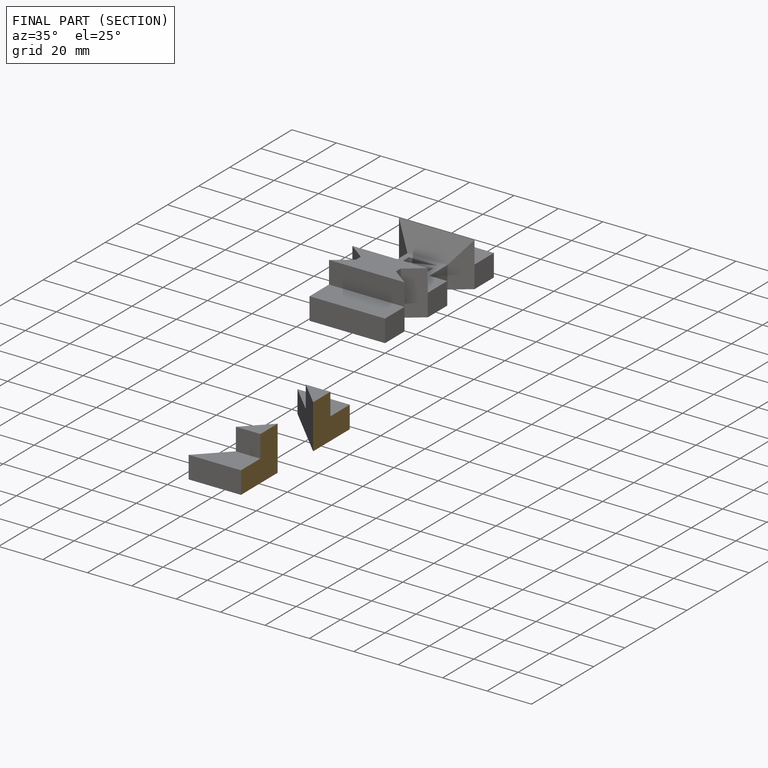
[diagram: finished part — half-section view (interior)]
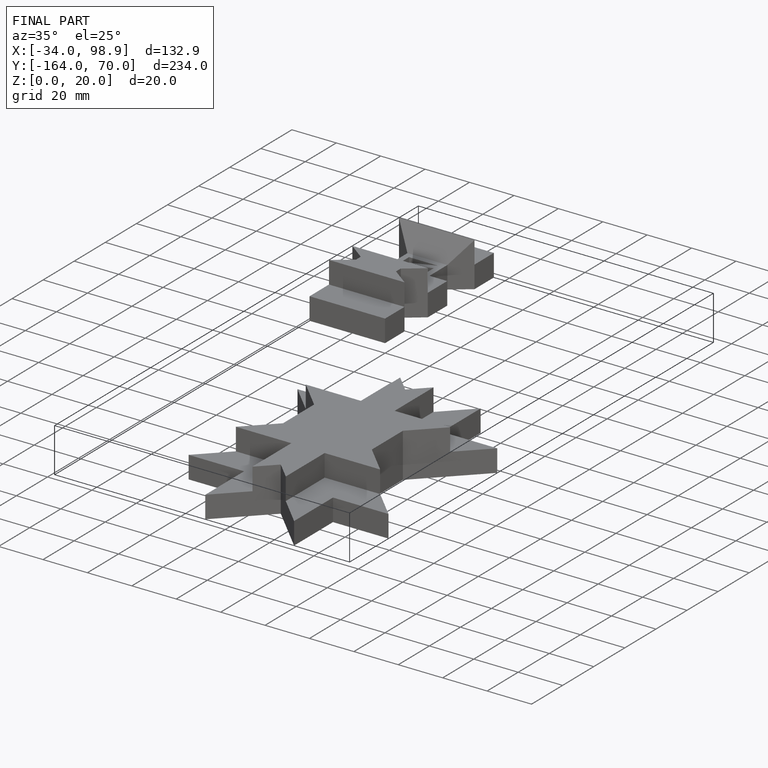
[diagram: finished part — iso view with bounding-box wireframe]
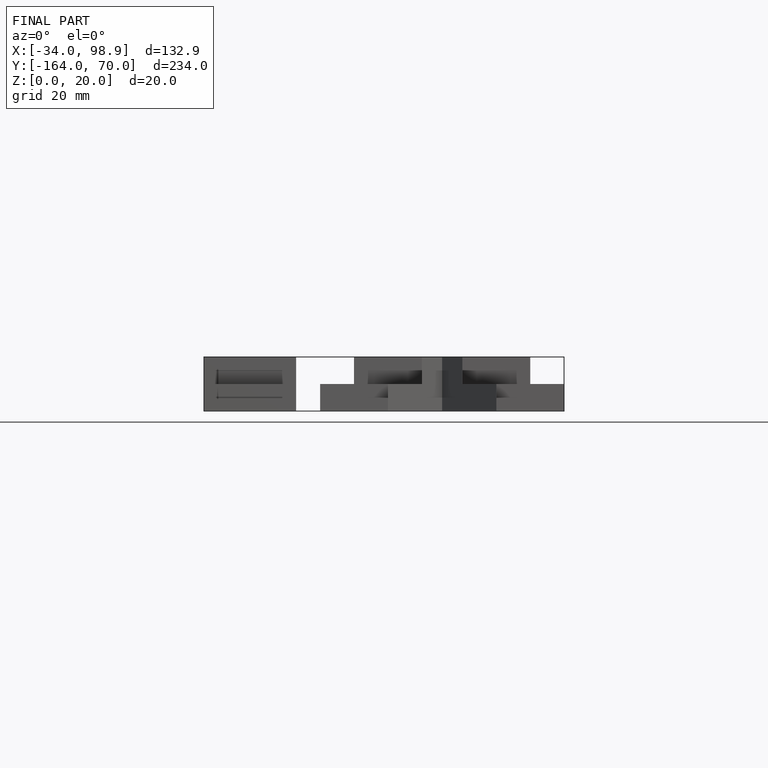
[diagram: finished part — front view with bounding-box wireframe]
